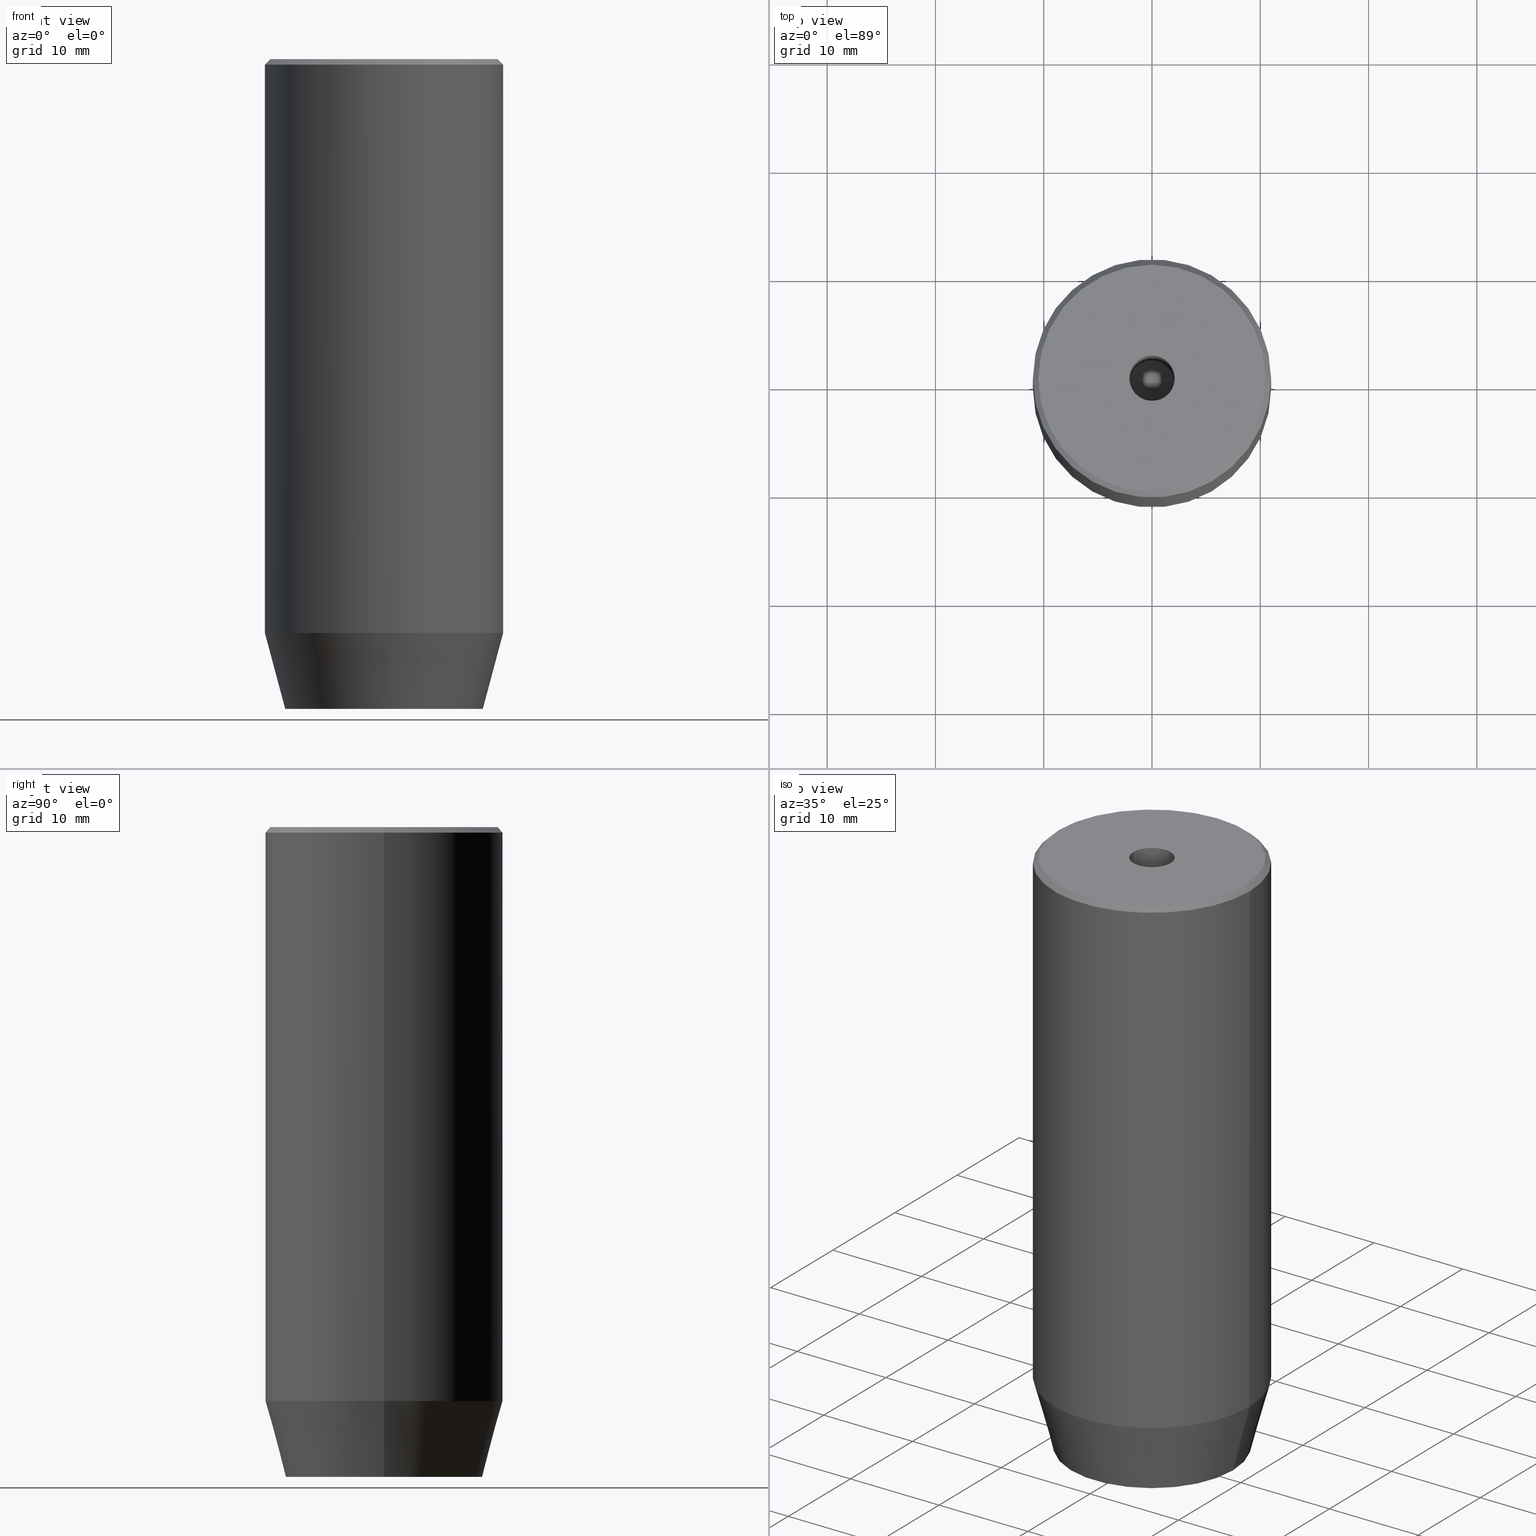
[diagram: canonical four-view strip — front | top / right | iso, engineering-drawing reading convention]
A machine part, canonical four-view strip (front | top / right | iso — engineering-drawing reading convention). The complete STEP part file that produces these views, byte-faithful:
ISO-10303-21;
HEADER;
FILE_DESCRIPTION (( 'STEP AP203' ),
    '1' );
FILE_NAME ('e784.STEP',
    '2024-01-02T19:02:52',
    ( '' ),
    ( '' ),
    'SwSTEP 2.0',
    'SolidWorks 2019',
    '' );
FILE_SCHEMA (( 'CONFIG_CONTROL_DESIGN' ));
ENDSEC;

DATA;
#1 = FACE_OUTER_BOUND ( 'NONE', #431, .T. ) ;
#2 = LINE ( 'NONE', #148, #587 ) ;
#3 = EDGE_CURVE ( 'NONE', #414, #233, #578, .T. ) ;
#4 = CARTESIAN_POINT ( 'NONE',  ( 4.000000000000000000, 0.000000000000000000, -57.20000000000000284 ) ) ;
#5 = VECTOR ( 'NONE', #128, 999.9999999999998863 ) ;
#6 = LOCAL_TIME ( 20, 2, 52.00000000000000000, #485 ) ;
#7 = CARTESIAN_POINT ( 'NONE',  ( 2.000000000000000888, -3.464101615137754386, -57.20000000000000284 ) ) ;
#8 = EDGE_CURVE ( 'NONE', #83, #362, #99, .T. ) ;
#9 = CARTESIAN_POINT ( 'NONE',  ( 0.000000000000000000, 0.000000000000000000, 0.000000000000000000 ) ) ;
#10 = DATE_AND_TIME ( #15, #449 ) ;
#11 = CIRCLE ( 'NONE', #417, 11.00000000000000000 ) ;
#12 = DIRECTION ( 'NONE',  ( -0.000000000000000000, -0.000000000000000000, 1.000000000000000000 ) ) ;
#13 =( GEOMETRIC_REPRESENTATION_CONTEXT ( 3 ) GLOBAL_UNCERTAINTY_ASSIGNED_CONTEXT ( ( #468 ) ) GLOBAL_UNIT_ASSIGNED_CONTEXT ( ( #19, #348, #207 ) ) REPRESENTATION_CONTEXT ( 'NONE', 'WORKASPACE' ) );
#14 = EDGE_LOOP ( 'NONE', ( #487, #179, #497, #159 ) ) ;
#15 = CALENDAR_DATE ( 2024, 2, 1 ) ;
#16 = PLANE ( 'NONE',  #249 ) ;
#17 = ADVANCED_FACE ( 'NONE', ( #319 ), #442, .T. ) ;
#18 = CC_DESIGN_PERSON_AND_ORGANIZATION_ASSIGNMENT ( #393, #250, ( #136 ) ) ;
#19 =( LENGTH_UNIT ( ) NAMED_UNIT ( * ) SI_UNIT ( .MILLI., .METRE. ) );
#20 = APPROVAL_ROLE ( '' ) ;
#21 = CIRCLE ( 'NONE', #505, 2.099999999999998757 ) ;
#22 = LINE ( 'NONE', #353, #212 ) ;
#23 = VERTEX_POINT ( 'NONE', #275 ) ;
#24 = CALENDAR_DATE ( 2024, 2, 1 ) ;
#25 = EDGE_CURVE ( 'NONE', #492, #308, #47, .T. ) ;
#26 = DIRECTION ( 'NONE',  ( -1.000000000000000000, 0.000000000000000000, -0.000000000000000000 ) ) ;
#27 = ORIENTED_EDGE ( 'NONE', *, *, #399, .F. ) ;
#28 = ORIENTED_EDGE ( 'NONE', *, *, #292, .T. ) ;
#29 = DIRECTION ( 'NONE',  ( 0.8660254037844385966, -0.5000000000000001110, 0.000000000000000000 ) ) ;
#30 = APPROVAL ( #256, 'NEUR�EN�' ) ;
#31 = DIRECTION ( 'NONE',  ( 0.000000000000000000, 0.000000000000000000, -1.000000000000000000 ) ) ;
#32 = CARTESIAN_POINT ( 'NONE',  ( 4.000000000000000000, 2.309401076758503368, -60.00000000000000000 ) ) ;
#33 = LINE ( 'NONE', #580, #484 ) ;
#34 = ORIENTED_EDGE ( 'NONE', *, *, #559, .T. ) ;
#35 = ORIENTED_EDGE ( 'NONE', *, *, #49, .T. ) ;
#36 = CIRCLE ( 'NONE', #118, 2.099999999999995648 ) ;
#37 = LOCAL_TIME ( 20, 2, 52.00000000000000000, #172 ) ;
#38 = ORIENTED_EDGE ( 'NONE', *, *, #391, .T. ) ;
#39 = CARTESIAN_POINT ( 'NONE',  ( -2.000000000000000000, 3.464101615137754830, -57.20000000000000284 ) ) ;
#40 = ORIENTED_EDGE ( 'NONE', *, *, #66, .T. ) ;
#41 = CC_DESIGN_PERSON_AND_ORGANIZATION_ASSIGNMENT ( #440, #73, ( #460 ) ) ;
#42 = DIRECTION ( 'NONE',  ( -0.7071067811865451302, 0.000000000000000000, -0.7071067811865500152 ) ) ;
#43 = DIRECTION ( 'NONE',  ( -0.000000000000000000, -0.000000000000000000, 1.000000000000000000 ) ) ;
#44 = ORIENTED_EDGE ( 'NONE', *, *, #3, .F. ) ;
#45 = CARTESIAN_POINT ( 'NONE',  ( -4.000000000000000000, -2.309401076758503368, -57.20000000000000284 ) ) ;
#46 = FACE_OUTER_BOUND ( 'NONE', #113, .T. ) ;
#47 = CIRCLE ( 'NONE', #204, 2.099999999999995648 ) ;
#48 = CARTESIAN_POINT ( 'NONE',  ( 4.000000000000000000, 0.000000000000000000, -60.00000000000000000 ) ) ;
#49 = EDGE_CURVE ( 'NONE', #366, #547, #582, .T. ) ;
#50 = DIRECTION ( 'NONE',  ( -0.000000000000000000, -0.000000000000000000, 1.000000000000000000 ) ) ;
#51 = ORIENTED_EDGE ( 'NONE', *, *, #445, .T. ) ;
#52 = CARTESIAN_POINT ( 'NONE',  ( 4.000000000000000000, 0.000000000000000000, -57.20000000000000284 ) ) ;
#53 = CC_DESIGN_PERSON_AND_ORGANIZATION_ASSIGNMENT ( #402, #307, ( #460 ) ) ;
#54 = DIRECTION ( 'NONE',  ( 0.8660254037844387076, 0.5000000000000001110, 0.000000000000000000 ) ) ;
#55 = CARTESIAN_POINT ( 'NONE',  ( -10.50000000000000888, 0.000000000000000000, 0.000000000000000000 ) ) ;
#56 = ORIENTED_EDGE ( 'NONE', *, *, #133, .F. ) ;
#57 = CIRCLE ( 'NONE', #435, 9.124355652982135467 ) ;
#58 = CC_DESIGN_APPROVAL ( #180, ( #103 ) ) ;
#59 = DIRECTION ( 'NONE',  ( -1.000000000000000000, 0.000000000000000000, 0.000000000000000000 ) ) ;
#60 = CC_DESIGN_PERSON_AND_ORGANIZATION_ASSIGNMENT ( #61, #114, ( #110 ) ) ;
#61 = PERSON_AND_ORGANIZATION ( #193, #119 ) ;
#62 = CALENDAR_DATE ( 2024, 2, 1 ) ;
#63 = AXIS2_PLACEMENT_3D ( 'NONE', #318, #183, #536 ) ;
#64 = VECTOR ( 'NONE', #503, 1000.000000000000114 ) ;
#65 = FACE_OUTER_BOUND ( 'NONE', #372, .T. ) ;
#66 = EDGE_CURVE ( 'NONE', #408, #232, #57, .T. ) ;
#67 = CARTESIAN_POINT ( 'NONE',  ( 0.000000000000000000, 0.000000000000000000, -25.00000000000000000 ) ) ;
#68 = VERTEX_POINT ( 'NONE', #160 ) ;
#69 = DATE_AND_TIME ( #24, #37 ) ;
#70 = ORIENTED_EDGE ( 'NONE', *, *, #252, .F. ) ;
#71 = ORIENTED_EDGE ( 'NONE', *, *, #429, .F. ) ;
#72 = ADVANCED_FACE ( 'NONE', ( #388 ), #126, .F. ) ;
#73 = PERSON_AND_ORGANIZATION_ROLE ( 'design_supplier' ) ;
#74 = DIRECTION ( 'NONE',  ( 1.000000000000000000, 0.000000000000000000, 0.000000000000000000 ) ) ;
#75 = CIRCLE ( 'NONE', #277, 10.50000000000000888 ) ;
#76 = ORIENTED_EDGE ( 'NONE', *, *, #246, .T. ) ;
#77 = ORIENTED_EDGE ( 'NONE', *, *, #466, .F. ) ;
#78 = DATE_TIME_ROLE ( 'creation_date' ) ;
#79 = DIRECTION ( 'NONE',  ( -0.000000000000000000, -0.000000000000000000, -1.000000000000000000 ) ) ;
#80 = CARTESIAN_POINT ( 'NONE',  ( 0.000000000000000000, 0.000000000000000000, -53.00000000000000000 ) ) ;
#81 = CARTESIAN_POINT ( 'NONE',  ( 4.000000000000000000, -2.309401076758502480, -57.20000000000000284 ) ) ;
#82 = EDGE_LOOP ( 'NONE', ( #169, #175, #556, #306 ) ) ;
#83 = VERTEX_POINT ( 'NONE', #258 ) ;
#84 = CARTESIAN_POINT ( 'NONE',  ( 0.000000000000000000, 0.000000000000000000, -57.20000000000000284 ) ) ;
#85 = CARTESIAN_POINT ( 'NONE',  ( -4.000000000000000000, 0.000000000000000000, -57.20000000000000284 ) ) ;
#86 = ORIENTED_EDGE ( 'NONE', *, *, #405, .T. ) ;
#87 = AXIS2_PLACEMENT_3D ( 'NONE', #215, #365, #74 ) ;
#88 = EDGE_LOOP ( 'NONE', ( #374, #284, #534, #51 ) ) ;
#89 = ADVANCED_FACE ( 'NONE', ( #331 ), #106, .T. ) ;
#90 = CARTESIAN_POINT ( 'NONE',  ( -9.124355652982135467, 1.232261386766375704E-15, -60.00000000000000000 ) ) ;
#91 = VERTEX_POINT ( 'NONE', #55 ) ;
#92 = DIRECTION ( 'NONE',  ( 0.000000000000000000, 1.000000000000000000, 0.000000000000000000 ) ) ;
#93 = DIRECTION ( 'NONE',  ( -0.000000000000000000, -0.000000000000000000, 1.000000000000000000 ) ) ;
#94 = CARTESIAN_POINT ( 'NONE',  ( 0.000000000000000000, 0.000000000000000000, -0.4999999999999935052 ) ) ;
#95 = EDGE_CURVE ( 'NONE', #68, #216, #501, .T. ) ;
#96 = DIRECTION ( 'NONE',  ( 1.000000000000000000, 0.000000000000000000, 0.000000000000000000 ) ) ;
#97 = LINE ( 'NONE', #291, #424 ) ;
#98 = DIRECTION ( 'NONE',  ( 1.000000000000000000, 0.000000000000000000, 0.000000000000000000 ) ) ;
#99 = CIRCLE ( 'NONE', #493, 11.00000000000000000 ) ;
#100 = EDGE_LOOP ( 'NONE', ( #539, #464, #473 ) ) ;
#101 = VECTOR ( 'NONE', #328, 1000.000000000000000 ) ;
#102 = DIRECTION ( 'NONE',  ( -0.000000000000000000, -0.000000000000000000, 1.000000000000000000 ) ) ;
#103 = SECURITY_CLASSIFICATION ( '', '', #398 ) ;
#104 = LINE ( 'NONE', #383, #478 ) ;
#105 = DIRECTION ( 'NONE',  ( 0.8660254037844384856, 0.5000000000000002220, 0.000000000000000000 ) ) ;
#106 = CYLINDRICAL_SURFACE ( 'NONE', #513, 11.00000000000000000 ) ;
#107 = APPLICATION_PROTOCOL_DEFINITION ( 'international standard', 'config_control_design', 1994, #217 ) ;
#108 = DIRECTION ( 'NONE',  ( 0.7071067811865451302, 8.659560562354904508E-17, -0.7071067811865500152 ) ) ;
#109 = VECTOR ( 'NONE', #278, 1000.000000000000000 ) ;
#110 = PRODUCT ( 'e784', 'e784', '', ( #346 ) ) ;
#111 = CARTESIAN_POINT ( 'NONE',  ( -2.099999999999998757, 2.571758278209440478E-16, -1.990051048614449116E-16 ) ) ;
#112 = CARTESIAN_POINT ( 'NONE',  ( 2.000000000000000888, -3.464101615137754386, -57.20000000000000284 ) ) ;
#113 = EDGE_LOOP ( 'NONE', ( #439, #452, #144, #260 ) ) ;
#114 = PERSON_AND_ORGANIZATION_ROLE ( 'design_owner' ) ;
#115 = DIRECTION ( 'NONE',  ( -0.000000000000000000, -0.000000000000000000, 1.000000000000000000 ) ) ;
#116 = ORIENTED_EDGE ( 'NONE', *, *, #419, .F. ) ;
#117 = AXIS2_PLACEMENT_3D ( 'NONE', #321, #273, #122 ) ;
#118 = AXIS2_PLACEMENT_3D ( 'NONE', #67, #304, #259 ) ;
#119 = ORGANIZATION ( 'NEUR�EN�', 'NEUR�EN�', '' ) ;
#120 = SHAPE_DEFINITION_REPRESENTATION ( #197, #320 ) ;
#121 = EDGE_CURVE ( 'NONE', #362, #83, #11, .T. ) ;
#122 = DIRECTION ( 'NONE',  ( 1.000000000000000000, 0.000000000000000000, 0.000000000000000000 ) ) ;
#123 = DIRECTION ( 'NONE',  ( 0.000000000000000000, 0.000000000000000000, -1.000000000000000000 ) ) ;
#124 = ADVANCED_FACE ( 'NONE', ( #267 ), #271, .F. ) ;
#125 = PERSON_AND_ORGANIZATION_ROLE ( 'classification_officer' ) ;
#126 = CONICAL_SURFACE ( 'NONE', #225, 2.099999999999995648, 1.029744258676651647 ) ;
#127 = AXIS2_PLACEMENT_3D ( 'NONE', #426, #516, #59 ) ;
#128 = DIRECTION ( 'NONE',  ( 0.8660254037844387076, 0.5000000000000001110, 0.000000000000000000 ) ) ;
#129 = CC_DESIGN_APPROVAL ( #30, ( #136 ) ) ;
#130 = VERTEX_POINT ( 'NONE', #541 ) ;
#131 = CARTESIAN_POINT ( 'NONE',  ( 11.00000000000000000, 0.000000000000000000, -53.00000000000000000 ) ) ;
#132 = DIRECTION ( 'NONE',  ( 1.000000000000000000, 0.000000000000000000, 0.000000000000000000 ) ) ;
#133 = EDGE_CURVE ( 'NONE', #502, #130, #323, .T. ) ;
#134 = CARTESIAN_POINT ( 'NONE',  ( 0.000000000000000000, 0.000000000000000000, 0.000000000000000000 ) ) ;
#135 = CARTESIAN_POINT ( 'NONE',  ( -11.00000000000000000, 1.347111479062088405E-15, -0.4999999999999935052 ) ) ;
#136 = PRODUCT_DEFINITION ( 'NEZN�M�', '', #460, #157 ) ;
#137 = ORIENTED_EDGE ( 'NONE', *, *, #429, .T. ) ;
#138 = DIRECTION ( 'NONE',  ( -1.000000000000000000, 0.000000000000000000, 0.000000000000000000 ) ) ;
#139 = ORIENTED_EDGE ( 'NONE', *, *, #222, .F. ) ;
#140 = VECTOR ( 'NONE', #528, 1000.000000000000000 ) ;
#141 = ORIENTED_EDGE ( 'NONE', *, *, #145, .F. ) ;
#142 = LINE ( 'NONE', #198, #506 ) ;
#143 = ORIENTED_EDGE ( 'NONE', *, *, #133, .T. ) ;
#144 = ORIENTED_EDGE ( 'NONE', *, *, #399, .T. ) ;
#145 = EDGE_CURVE ( 'NONE', #404, #562, #552, .T. ) ;
#146 = DIRECTION ( 'NONE',  ( -0.8660254037844385966, 0.5000000000000001110, 0.000000000000000000 ) ) ;
#147 = ORIENTED_EDGE ( 'NONE', *, *, #164, .F. ) ;
#148 = CARTESIAN_POINT ( 'NONE',  ( 11.00000000000000000, 0.000000000000000000, -53.00000000000000000 ) ) ;
#149 = VECTOR ( 'NONE', #92, 1000.000000000000000 ) ;
#150 = ORIENTED_EDGE ( 'NONE', *, *, #3, .T. ) ;
#151 = DIRECTION ( 'NONE',  ( 1.000000000000000000, 0.000000000000000000, 0.000000000000000000 ) ) ;
#152 = LINE ( 'NONE', #294, #64 ) ;
#153 = DIRECTION ( 'NONE',  ( -0.000000000000000000, -0.000000000000000000, -1.000000000000000000 ) ) ;
#154 = LINE ( 'NONE', #341, #161 ) ;
#155 = EDGE_CURVE ( 'NONE', #216, #502, #174, .T. ) ;
#156 = ORIENTED_EDGE ( 'NONE', *, *, #95, .T. ) ;
#157 = DESIGN_CONTEXT ( 'detailed design', #209, 'design' ) ;
#158 = DIRECTION ( 'NONE',  ( 1.000000000000000000, 0.000000000000000000, 0.000000000000000000 ) ) ;
#159 = ORIENTED_EDGE ( 'NONE', *, *, #298, .F. ) ;
#160 = CARTESIAN_POINT ( 'NONE',  ( 4.336808689942017736E-16, -4.618802153517006737, -57.20000000000000284 ) ) ;
#161 = VECTOR ( 'NONE', #108, 1000.000000000000114 ) ;
#162 = CONICAL_SURFACE ( 'NONE', #303, 2.099999999999995648, 1.029744258676651647 ) ;
#163 = DIRECTION ( 'NONE',  ( 0.000000000000000000, 0.000000000000000000, 1.000000000000000000 ) ) ;
#164 = EDGE_CURVE ( 'NONE', #500, #68, #476, .T. ) ;
#165 = ORIENTED_EDGE ( 'NONE', *, *, #247, .T. ) ;
#166 = DATE_AND_TIME ( #62, #579 ) ;
#167 = ORIENTED_EDGE ( 'NONE', *, *, #377, .T. ) ;
#168 = CARTESIAN_POINT ( 'NONE',  ( -2.099999999999995648, 2.571758278209436040E-16, -25.00000000000000000 ) ) ;
#169 = ORIENTED_EDGE ( 'NONE', *, *, #561, .F. ) ;
#170 = ORIENTED_EDGE ( 'NONE', *, *, #355, .T. ) ;
#171 = ADVANCED_FACE ( 'NONE', ( #477, #65 ), #16, .T. ) ;
#172 = COORDINATED_UNIVERSAL_TIME_OFFSET ( 1, 0, .AHEAD. ) ;
#173 = CARTESIAN_POINT ( 'NONE',  ( -4.000000000000000000, 2.309401076758503368, -57.20000000000000284 ) ) ;
#174 = LINE ( 'NONE', #45, #301 ) ;
#175 = ORIENTED_EDGE ( 'NONE', *, *, #189, .T. ) ;
#176 = AXIS2_PLACEMENT_3D ( 'NONE', #345, #517, #394 ) ;
#177 = DIRECTION ( 'NONE',  ( -0.000000000000000000, -0.000000000000000000, -1.000000000000000000 ) ) ;
#178 = ADVANCED_FACE ( 'NONE', ( #253 ), #202, .F. ) ;
#179 = ORIENTED_EDGE ( 'NONE', *, *, #310, .T. ) ;
#180 = APPROVAL ( #480, 'NEUR�EN�' ) ;
#181 = LINE ( 'NONE', #173, #469 ) ;
#182 = ORIENTED_EDGE ( 'NONE', *, *, #155, .T. ) ;
#183 = DIRECTION ( 'NONE',  ( -0.5000000000000000000, 0.8660254037844387076, 0.000000000000000000 ) ) ;
#184 = CARTESIAN_POINT ( 'NONE',  ( 0.000000000000000000, 4.618802153517006737, -57.20000000000000284 ) ) ;
#185 = DIRECTION ( 'NONE',  ( -0.5000000000000003331, -0.8660254037844385966, 0.000000000000000000 ) ) ;
#186 = ORIENTED_EDGE ( 'NONE', *, *, #347, .T. ) ;
#187 = CARTESIAN_POINT ( 'NONE',  ( -4.000000000000000000, -2.309401076758503368, -57.20000000000000284 ) ) ;
#188 = CARTESIAN_POINT ( 'NONE',  ( -6.432287649943602629E-15, 0.000000000000000000, -26.26180729995787999 ) ) ;
#189 = EDGE_CURVE ( 'NONE', #23, #83, #154, .T. ) ;
#190 = CLOSED_SHELL ( 'NONE', ( #214, #72, #339, #234, #89, #269, #171, #530, #474, #553, #124, #178, #240, #425, #511, #467, #17, #574, #498 ) ) ;
#191 = ORIENTED_EDGE ( 'NONE', *, *, #292, .F. ) ;
#192 = DIRECTION ( 'NONE',  ( -0.000000000000000000, -0.000000000000000000, 1.000000000000000000 ) ) ;
#193 = PERSON ( 'NEUR�EN�', 'NEUR�EN�', 'NEUR�EN�', ('NEUR�EN�'), ('NEUR�EN�'), ('NEUR�EN�') ) ;
#194 = LINE ( 'NONE', #508, #397 ) ;
#195 = CARTESIAN_POINT ( 'NONE',  ( 0.000000000000000000, 0.000000000000000000, -60.00000000000000000 ) ) ;
#196 = DIRECTION ( 'NONE',  ( 0.000000000000000000, -1.000000000000000000, 0.000000000000000000 ) ) ;
#197 = PRODUCT_DEFINITION_SHAPE ( 'NONE', 'NONE',  #136 ) ;
#198 = CARTESIAN_POINT ( 'NONE',  ( 2.000000000000000444, 3.464101615137754386, -57.20000000000000284 ) ) ;
#199 = DIRECTION ( 'NONE',  ( -0.000000000000000000, -0.000000000000000000, 1.000000000000000000 ) ) ;
#200 = CARTESIAN_POINT ( 'NONE',  ( -10.50000000000000888, 0.000000000000000000, 0.000000000000000000 ) ) ;
#201 = APPROVAL_DATE_TIME ( #10, #30 ) ;
#202 = PLANE ( 'NONE',  #176 ) ;
#203 = EDGE_CURVE ( 'NONE', #91, #362, #296, .T. ) ;
#204 = AXIS2_PLACEMENT_3D ( 'NONE', #447, #230, #410 ) ;
#205 = DIRECTION ( 'NONE',  ( 1.000000000000000000, 0.000000000000000000, 0.000000000000000000 ) ) ;
#206 = ORIENTED_EDGE ( 'NONE', *, *, #49, .F. ) ;
#207 =( NAMED_UNIT ( * ) SI_UNIT ( $, .STERADIAN. ) SOLID_ANGLE_UNIT ( ) );
#208 = CARTESIAN_POINT ( 'NONE',  ( 0.000000000000000000, 0.000000000000000000, 0.000000000000000000 ) ) ;
#209 = APPLICATION_CONTEXT ( 'configuration controlled 3d designs of mechanical parts and assemblies' ) ;
#210 = DIRECTION ( 'NONE',  ( 1.000000000000000000, 0.000000000000000000, 0.000000000000000000 ) ) ;
#211 = VERTEX_POINT ( 'NONE', #32 ) ;
#212 = VECTOR ( 'NONE', #79, 1000.000000000000000 ) ;
#213 = DATE_AND_TIME ( #522, #6 ) ;
#214 = ADVANCED_FACE ( 'NONE', ( #412 ), #226, .F. ) ;
#215 = CARTESIAN_POINT ( 'NONE',  ( 0.000000000000000000, 0.000000000000000000, -53.00000000000000000 ) ) ;
#216 = VERTEX_POINT ( 'NONE', #187 ) ;
#217 = APPLICATION_CONTEXT ( 'configuration controlled 3d designs of mechanical parts and assemblies' ) ;
#218 = CARTESIAN_POINT ( 'NONE',  ( -11.00000000000000000, 1.347111479062088405E-15, 0.000000000000000000 ) ) ;
#219 = ORIENTED_EDGE ( 'NONE', *, *, #305, .F. ) ;
#220 = DIRECTION ( 'NONE',  ( 1.000000000000000000, 0.000000000000000000, 0.000000000000000000 ) ) ;
#221 = ORIENTED_EDGE ( 'NONE', *, *, #310, .F. ) ;
#222 = EDGE_CURVE ( 'NONE', #327, #502, #544, .T. ) ;
#223 = DIRECTION ( 'NONE',  ( -1.000000000000000000, 0.000000000000000000, -0.000000000000000000 ) ) ;
#224 = CARTESIAN_POINT ( 'NONE',  ( -2.000000000000000888, -3.464101615137754386, -60.00000000000000000 ) ) ;
#225 = AXIS2_PLACEMENT_3D ( 'NONE', #255, #563, #519 ) ;
#226 = CYLINDRICAL_SURFACE ( 'NONE', #520, 2.099999999999996980 ) ;
#227 = DIRECTION ( 'NONE',  ( -0.000000000000000000, -0.000000000000000000, 1.000000000000000000 ) ) ;
#228 = EDGE_LOOP ( 'NONE', ( #570, #537, #494, #359 ) ) ;
#229 = EDGE_LOOP ( 'NONE', ( #170, #546, #336, #35 ) ) ;
#230 = DIRECTION ( 'NONE',  ( -0.000000000000000000, -0.000000000000000000, 1.000000000000000000 ) ) ;
#231 = CARTESIAN_POINT ( 'NONE',  ( 0.000000000000000000, 9.124355652982135467, -60.00000000000000000 ) ) ;
#232 = VERTEX_POINT ( 'NONE', #262 ) ;
#233 = VERTEX_POINT ( 'NONE', #131 ) ;
#234 = ADVANCED_FACE ( 'NONE', ( #357 ), #380, .T. ) ;
#235 = CARTESIAN_POINT ( 'NONE',  ( 0.000000000000000000, 0.000000000000000000, -60.00000000000000000 ) ) ;
#236 = ORIENTED_EDGE ( 'NONE', *, *, #405, .F. ) ;
#237 = DIRECTION ( 'NONE',  ( -0.000000000000000000, -0.000000000000000000, -1.000000000000000000 ) ) ;
#238 = VECTOR ( 'NONE', #29, 1000.000000000000000 ) ;
#239 = DIRECTION ( 'NONE',  ( 0.5000000000000003331, -0.8660254037844385966, 0.000000000000000000 ) ) ;
#240 = ADVANCED_FACE ( 'NONE', ( #316 ), #569, .F. ) ;
#241 = CONICAL_SURFACE ( 'NONE', #483, 10.50000000000000888, 0.7853981633974447263 ) ;
#242 = DIRECTION ( 'NONE',  ( -0.000000000000000000, 0.000000000000000000, -1.000000000000000000 ) ) ;
#243 = ORIENTED_EDGE ( 'NONE', *, *, #247, .F. ) ;
#244 = PLANE ( 'NONE',  #554 ) ;
#245 = ORIENTED_EDGE ( 'NONE', *, *, #419, .T. ) ;
#246 = EDGE_CURVE ( 'NONE', #500, #457, #486, .T. ) ;
#247 = EDGE_CURVE ( 'NONE', #562, #404, #21, .T. ) ;
#248 = DIRECTION ( 'NONE',  ( 0.5000000000000001110, 0.8660254037844385966, -0.000000000000000000 ) ) ;
#249 = AXIS2_PLACEMENT_3D ( 'NONE', #208, #385, #251 ) ;
#250 = PERSON_AND_ORGANIZATION_ROLE ( 'creator' ) ;
#251 = DIRECTION ( 'NONE',  ( 1.000000000000000000, 0.000000000000000000, 0.000000000000000000 ) ) ;
#252 = EDGE_CURVE ( 'NONE', #280, #366, #450, .T. ) ;
#253 = FACE_OUTER_BOUND ( 'NONE', #315, .T. ) ;
#254 = CYLINDRICAL_SURFACE ( 'NONE', #459, 11.00000000000000000 ) ;
#255 = CARTESIAN_POINT ( 'NONE',  ( 0.000000000000000000, 0.000000000000000000, -25.00000000000000000 ) ) ;
#256 = APPROVAL_STATUS ( 'not_yet_approved' ) ;
#257 = DIRECTION ( 'NONE',  ( -0.8660254037844384856, -0.5000000000000002220, 0.000000000000000000 ) ) ;
#258 = CARTESIAN_POINT ( 'NONE',  ( 11.00000000000000000, 0.000000000000000000, -0.4999999999999935052 ) ) ;
#259 = DIRECTION ( 'NONE',  ( 1.000000000000000000, 0.000000000000000000, 0.000000000000000000 ) ) ;
#260 = ORIENTED_EDGE ( 'NONE', *, *, #145, .T. ) ;
#261 = DATE_TIME_ROLE ( 'classification_date' ) ;
#262 = CARTESIAN_POINT ( 'NONE',  ( 9.124355652982135467, 0.000000000000000000, -60.00000000000000000 ) ) ;
#263 = ORIENTED_EDGE ( 'NONE', *, *, #332, .T. ) ;
#264 = VECTOR ( 'NONE', #524, 1000.000000000000114 ) ;
#265 = DIRECTION ( 'NONE',  ( 0.8660254037844384856, -0.5000000000000002220, 0.000000000000000000 ) ) ;
#266 = EDGE_LOOP ( 'NONE', ( #137, #206, #70, #263 ) ) ;
#267 = FACE_OUTER_BOUND ( 'NONE', #266, .T. ) ;
#268 = APPROVAL_ROLE ( '' ) ;
#269 = ADVANCED_FACE ( 'NONE', ( #538, #413 ), #407, .T. ) ;
#270 = CARTESIAN_POINT ( 'NONE',  ( 2.000000000000000444, 3.464101615137754386, -60.00000000000000000 ) ) ;
#271 = PLANE ( 'NONE',  #63 ) ;
#272 = DIRECTION ( 'NONE',  ( -0.000000000000000000, -0.000000000000000000, 1.000000000000000000 ) ) ;
#273 = DIRECTION ( 'NONE',  ( -0.000000000000000000, -0.000000000000000000, 1.000000000000000000 ) ) ;
#274 = EDGE_LOOP ( 'NONE', ( #77, #282, #34 ) ) ;
#275 = CARTESIAN_POINT ( 'NONE',  ( 10.50000000000000888, 1.316495309083405209E-15, 0.000000000000000000 ) ) ;
#276 = AXIS2_PLACEMENT_3D ( 'NONE', #361, #185, #265 ) ;
#277 = AXIS2_PLACEMENT_3D ( 'NONE', #428, #558, #158 ) ;
#278 = DIRECTION ( 'NONE',  ( 0.000000000000000000, 1.000000000000000000, 0.000000000000000000 ) ) ;
#279 = LOCAL_TIME ( 20, 2, 52.00000000000000000, #433 ) ;
#280 = VERTEX_POINT ( 'NONE', #443 ) ;
#281 = EDGE_LOOP ( 'NONE', ( #531, #444, #165, #27 ) ) ;
#282 = ORIENTED_EDGE ( 'NONE', *, *, #409, .T. ) ;
#283 = DIRECTION ( 'NONE',  ( 0.8571673007021108903, 0.000000000000000000, 0.5150380749100565980 ) ) ;
#284 = ORIENTED_EDGE ( 'NONE', *, *, #155, .F. ) ;
#285 = FACE_OUTER_BOUND ( 'NONE', #584, .T. ) ;
#286 = MANIFOLD_SOLID_BREP ( 'Vrt�k z�vitn�ku pro M5 z�vit1', #190 ) ;
#287 = PLANE ( 'NONE',  #543 ) ;
#288 = AXIS2_PLACEMENT_3D ( 'NONE', #235, #338, #555 ) ;
#289 = DIRECTION ( 'NONE',  ( -0.8660254037844384856, 0.5000000000000002220, 0.000000000000000000 ) ) ;
#290 = AXIS2_PLACEMENT_3D ( 'NONE', #566, #163, #475 ) ;
#291 = CARTESIAN_POINT ( 'NONE',  ( -2.000000000000000000, 3.464101615137754830, -60.00000000000000000 ) ) ;
#292 = EDGE_CURVE ( 'NONE', #408, #414, #33, .T. ) ;
#293 = ORIENTED_EDGE ( 'NONE', *, *, #66, .F. ) ;
#294 = CARTESIAN_POINT ( 'NONE',  ( -2.099999999999995648, 2.571758278209436040E-16, -25.00000000000000000 ) ) ;
#295 = COORDINATED_UNIVERSAL_TIME_OFFSET ( 1, 0, .AHEAD. ) ;
#296 = LINE ( 'NONE', #200, #358 ) ;
#297 = AXIS2_PLACEMENT_3D ( 'NONE', #80, #272, #132 ) ;
#298 = EDGE_CURVE ( 'NONE', #233, #83, #309, .T. ) ;
#299 = CARTESIAN_POINT ( 'NONE',  ( 0.000000000000000000, 0.000000000000000000, -25.00000000000000000 ) ) ;
#300 = PERSON_AND_ORGANIZATION ( #193, #119 ) ;
#301 = VECTOR ( 'NONE', #237, 1000.000000000000000 ) ;
#302 = CONICAL_SURFACE ( 'NONE', #127, 10.50000000000000888, 0.7853981633974447263 ) ;
#303 = AXIS2_PLACEMENT_3D ( 'NONE', #299, #12, #210 ) ;
#304 = DIRECTION ( 'NONE',  ( -0.000000000000000000, -0.000000000000000000, 1.000000000000000000 ) ) ;
#305 = EDGE_CURVE ( 'NONE', #233, #414, #349, .T. ) ;
#306 = ORIENTED_EDGE ( 'NONE', *, *, #203, .F. ) ;
#307 = PERSON_AND_ORGANIZATION_ROLE ( 'creator' ) ;
#308 = VERTEX_POINT ( 'NONE', #168 ) ;
#309 = LINE ( 'NONE', #482, #368 ) ;
#310 = EDGE_CURVE ( 'NONE', #414, #362, #532, .T. ) ;
#311 = DIRECTION ( 'NONE',  ( 1.000000000000000000, 0.000000000000000000, 0.000000000000000000 ) ) ;
#312 = VECTOR ( 'NONE', #196, 1000.000000000000000 ) ;
#313 = APPROVAL_DATE_TIME ( #356, #512 ) ;
#314 = DIRECTION ( 'NONE',  ( -0.2588190451025213501, 3.169619151431772337E-17, 0.9659258262890680902 ) ) ;
#315 = EDGE_LOOP ( 'NONE', ( #143, #533, #395, #182 ) ) ;
#316 = FACE_OUTER_BOUND ( 'NONE', #88, .T. ) ;
#317 = ORIENTED_EDGE ( 'NONE', *, *, #432, .T. ) ;
#318 = CARTESIAN_POINT ( 'NONE',  ( -2.000000000000000000, 3.464101615137754830, -57.20000000000000284 ) ) ;
#319 = FACE_OUTER_BOUND ( 'NONE', #540, .T. ) ;
#320 = ADVANCED_BREP_SHAPE_REPRESENTATION ( 'e784', ( #286, #290 ), #13 ) ;
#321 = CARTESIAN_POINT ( 'NONE',  ( 0.000000000000000000, 0.000000000000000000, -53.00000000000000000 ) ) ;
#322 = ORIENTED_EDGE ( 'NONE', *, *, #515, .F. ) ;
#323 = LINE ( 'NONE', #367, #149 ) ;
#324 = VECTOR ( 'NONE', #403, 1000.000000000000000 ) ;
#325 = AXIS2_PLACEMENT_3D ( 'NONE', #499, #43, #415 ) ;
#326 = CARTESIAN_POINT ( 'NONE',  ( 2.000000000000000888, -3.464101615137754386, -60.00000000000000000 ) ) ;
#327 = VERTEX_POINT ( 'NONE', #583 ) ;
#328 = DIRECTION ( 'NONE',  ( 0.000000000000000000, -1.000000000000000000, 0.000000000000000000 ) ) ;
#329 = DIRECTION ( 'NONE',  ( -0.000000000000000000, -0.000000000000000000, 1.000000000000000000 ) ) ;
#330 = FACE_OUTER_BOUND ( 'NONE', #436, .T. ) ;
#331 = FACE_OUTER_BOUND ( 'NONE', #14, .T. ) ;
#332 = EDGE_CURVE ( 'NONE', #280, #130, #181, .T. ) ;
#333 = AXIS2_PLACEMENT_3D ( 'NONE', #84, #31, #223 ) ;
#334 = DIRECTION ( 'NONE',  ( 0.8660254037844385966, -0.5000000000000001110, 0.000000000000000000 ) ) ;
#335 = APPROVAL_PERSON_ORGANIZATION ( #350, #180, #20 ) ;
#336 = ORIENTED_EDGE ( 'NONE', *, *, #432, .F. ) ;
#337 = CARTESIAN_POINT ( 'NONE',  ( -11.00000000000000000, 1.347111479062088405E-15, -53.00000000000000000 ) ) ;
#338 = DIRECTION ( 'NONE',  ( -0.000000000000000000, -0.000000000000000000, 1.000000000000000000 ) ) ;
#339 = ADVANCED_FACE ( 'NONE', ( #363 ), #241, .T. ) ;
#340 = FACE_OUTER_BOUND ( 'NONE', #228, .T. ) ;
#341 = CARTESIAN_POINT ( 'NONE',  ( 10.50000000000000888, 1.285879139104722014E-15, 0.000000000000000000 ) ) ;
#342 = ORIENTED_EDGE ( 'NONE', *, *, #445, .F. ) ;
#343 = CIRCLE ( 'NONE', #288, 9.124355652982135467 ) ;
#344 = COORDINATED_UNIVERSAL_TIME_OFFSET ( 1, 0, .AHEAD. ) ;
#345 = CARTESIAN_POINT ( 'NONE',  ( -4.000000000000000000, 0.000000000000000000, -57.20000000000000284 ) ) ;
#346 = MECHANICAL_CONTEXT ( 'NONE', #217, 'mechanical' ) ;
#347 = EDGE_CURVE ( 'NONE', #581, #211, #22, .T. ) ;
#348 =( NAMED_UNIT ( * ) PLANE_ANGLE_UNIT ( ) SI_UNIT ( $, .RADIAN. ) );
#349 = CIRCLE ( 'NONE', #87, 11.00000000000000000 ) ;
#350 = PERSON_AND_ORGANIZATION ( #193, #119 ) ;
#351 = ORIENTED_EDGE ( 'NONE', *, *, #565, .T. ) ;
#352 = PERSON_AND_ORGANIZATION ( #193, #119 ) ;
#353 = CARTESIAN_POINT ( 'NONE',  ( 4.000000000000000000, 2.309401076758503368, -57.20000000000000284 ) ) ;
#354 = ORIENTED_EDGE ( 'NONE', *, *, #355, .F. ) ;
#355 = EDGE_CURVE ( 'NONE', #547, #211, #400, .T. ) ;
#356 = DATE_AND_TIME ( #437, #279 ) ;
#357 = FACE_OUTER_BOUND ( 'NONE', #379, .T. ) ;
#358 = VECTOR ( 'NONE', #42, 1000.000000000000114 ) ;
#359 = ORIENTED_EDGE ( 'NONE', *, *, #8, .F. ) ;
#360 = CC_DESIGN_APPROVAL ( #512, ( #460 ) ) ;
#361 = CARTESIAN_POINT ( 'NONE',  ( -2.000000000000000888, -3.464101615137754386, -57.20000000000000284 ) ) ;
#362 = VERTEX_POINT ( 'NONE', #135 ) ;
#363 = FACE_OUTER_BOUND ( 'NONE', #82, .T. ) ;
#364 = DIRECTION ( 'NONE',  ( -0.000000000000000000, -0.000000000000000000, -1.000000000000000000 ) ) ;
#365 = DIRECTION ( 'NONE',  ( -0.000000000000000000, -0.000000000000000000, 1.000000000000000000 ) ) ;
#366 = VERTEX_POINT ( 'NONE', #491 ) ;
#367 = CARTESIAN_POINT ( 'NONE',  ( -4.000000000000000000, 0.000000000000000000, -60.00000000000000000 ) ) ;
#368 = VECTOR ( 'NONE', #496, 1000.000000000000000 ) ;
#369 = AXIS2_PLACEMENT_3D ( 'NONE', #384, #115, #205 ) ;
#370 = LINE ( 'NONE', #455, #495 ) ;
#371 = APPROVAL_PERSON_ORGANIZATION ( #352, #512, #268 ) ;
#372 = EDGE_LOOP ( 'NONE', ( #351, #523 ) ) ;
#373 = CARTESIAN_POINT ( 'NONE',  ( 0.000000000000000000, 0.000000000000000000, -1.990051048614449116E-16 ) ) ;
#374 = ORIENTED_EDGE ( 'NONE', *, *, #222, .T. ) ;
#375 = CARTESIAN_POINT ( 'NONE',  ( -4.000000000000000000, -2.309401076758503368, -60.00000000000000000 ) ) ;
#376 = ORIENTED_EDGE ( 'NONE', *, *, #246, .F. ) ;
#377 = EDGE_CURVE ( 'NONE', #457, #327, #441, .T. ) ;
#378 = CARTESIAN_POINT ( 'NONE',  ( 2.099999999999995648, 0.000000000000000000, -25.00000000000000000 ) ) ;
#379 = EDGE_LOOP ( 'NONE', ( #245, #28, #219, #236 ) ) ;
#380 = CONICAL_SURFACE ( 'NONE', #117, 11.00000000000000000, 0.2617993877991500740 ) ;
#381 = DIRECTION ( 'NONE',  ( 1.000000000000000000, 0.000000000000000000, 0.000000000000000000 ) ) ;
#382 = AXIS2_PLACEMENT_3D ( 'NONE', #7, #239, #105 ) ;
#383 = CARTESIAN_POINT ( 'NONE',  ( 2.099999999999995648, 0.000000000000000000, -25.00000000000000000 ) ) ;
#384 = CARTESIAN_POINT ( 'NONE',  ( 0.000000000000000000, 0.000000000000000000, 0.000000000000000000 ) ) ;
#385 = DIRECTION ( 'NONE',  ( 0.000000000000000000, -0.000000000000000000, 1.000000000000000000 ) ) ;
#386 = ORIENTED_EDGE ( 'NONE', *, *, #164, .T. ) ;
#387 = VECTOR ( 'NONE', #364, 1000.000000000000000 ) ;
#388 = FACE_OUTER_BOUND ( 'NONE', #274, .T. ) ;
#389 = CARTESIAN_POINT ( 'NONE',  ( 4.000000000000000000, 2.309401076758503368, -57.20000000000000284 ) ) ;
#390 = ORIENTED_EDGE ( 'NONE', *, *, #8, .T. ) ;
#391 = EDGE_CURVE ( 'NONE', #216, #280, #406, .T. ) ;
#392 = CC_DESIGN_DATE_AND_TIME_ASSIGNMENT ( #69, #261, ( #103 ) ) ;
#393 = PERSON_AND_ORGANIZATION ( #193, #119 ) ;
#394 = DIRECTION ( 'NONE',  ( 0.000000000000000000, 0.000000000000000000, 1.000000000000000000 ) ) ;
#395 = ORIENTED_EDGE ( 'NONE', *, *, #391, .F. ) ;
#396 = VECTOR ( 'NONE', #257, 1000.000000000000114 ) ;
#397 = VECTOR ( 'NONE', #153, 1000.000000000000000 ) ;
#398 = SECURITY_CLASSIFICATION_LEVEL ( 'unclassified' ) ;
#399 = EDGE_CURVE ( 'NONE', #492, #404, #577, .T. ) ;
#400 = LINE ( 'NONE', #270, #238 ) ;
#401 = ORIENTED_EDGE ( 'NONE', *, *, #515, .T. ) ;
#402 = PERSON_AND_ORGANIZATION ( #193, #119 ) ;
#403 = DIRECTION ( 'NONE',  ( -0.000000000000000000, -0.000000000000000000, 1.000000000000000000 ) ) ;
#404 = VERTEX_POINT ( 'NONE', #423 ) ;
#405 = EDGE_CURVE ( 'NONE', #232, #233, #2, .T. ) ;
#406 = LINE ( 'NONE', #85, #109 ) ;
#407 = PLANE ( 'NONE',  #567 ) ;
#408 = VERTEX_POINT ( 'NONE', #90 ) ;
#409 = EDGE_CURVE ( 'NONE', #479, #308, #152, .T. ) ;
#410 = DIRECTION ( 'NONE',  ( 1.000000000000000000, 0.000000000000000000, 0.000000000000000000 ) ) ;
#411 = CC_DESIGN_PERSON_AND_ORGANIZATION_ASSIGNMENT ( #527, #125, ( #103 ) ) ;
#412 = FACE_OUTER_BOUND ( 'NONE', #281, .T. ) ;
#413 = FACE_OUTER_BOUND ( 'NONE', #526, .T. ) ;
#414 = VERTEX_POINT ( 'NONE', #337 ) ;
#415 = DIRECTION ( 'NONE',  ( 1.000000000000000000, 0.000000000000000000, 0.000000000000000000 ) ) ;
#416 = ORIENTED_EDGE ( 'NONE', *, *, #454, .F. ) ;
#417 = AXIS2_PLACEMENT_3D ( 'NONE', #94, #456, #462 ) ;
#418 = CARTESIAN_POINT ( 'NONE',  ( 4.000000000000000000, -2.309401076758502480, -60.00000000000000000 ) ) ;
#419 = EDGE_CURVE ( 'NONE', #232, #408, #343, .T. ) ;
#420 = LINE ( 'NONE', #4, #312 ) ;
#421 = CC_DESIGN_DATE_AND_TIME_ASSIGNMENT ( #166, #78, ( #136 ) ) ;
#422 = CARTESIAN_POINT ( 'NONE',  ( 4.000000000000000000, -2.309401076758502480, -57.20000000000000284 ) ) ;
#423 = CARTESIAN_POINT ( 'NONE',  ( 2.099999999999998757, 0.000000000000000000, -1.990051048614449116E-16 ) ) ;
#424 = VECTOR ( 'NONE', #54, 999.9999999999998863 ) ;
#425 = ADVANCED_FACE ( 'NONE', ( #285 ), #510, .F. ) ;
#426 = CARTESIAN_POINT ( 'NONE',  ( 0.000000000000000000, 0.000000000000000000, 0.000000000000000000 ) ) ;
#427 = APPLICATION_PROTOCOL_DEFINITION ( 'international standard', 'config_control_design', 1994, #209 ) ;
#428 = CARTESIAN_POINT ( 'NONE',  ( 0.000000000000000000, 0.000000000000000000, 0.000000000000000000 ) ) ;
#429 = EDGE_CURVE ( 'NONE', #130, #547, #97, .T. ) ;
#430 = APPROVAL_ROLE ( '' ) ;
#431 = EDGE_LOOP ( 'NONE', ( #191, #40, #86, #44 ) ) ;
#432 = EDGE_CURVE ( 'NONE', #366, #581, #142, .T. ) ;
#433 = COORDINATED_UNIVERSAL_TIME_OFFSET ( 1, 0, .AHEAD. ) ;
#434 = DIRECTION ( 'NONE',  ( -0.8660254037844384856, 0.5000000000000002220, 0.000000000000000000 ) ) ;
#435 = AXIS2_PLACEMENT_3D ( 'NONE', #195, #102, #151 ) ;
#436 = EDGE_LOOP ( 'NONE', ( #576, #376, #322, #186 ) ) ;
#437 = CALENDAR_DATE ( 2024, 2, 1 ) ;
#438 = CARTESIAN_POINT ( 'NONE',  ( 0.000000000000000000, 0.000000000000000000, -1.990051048614449116E-16 ) ) ;
#439 = ORIENTED_EDGE ( 'NONE', *, *, #488, .F. ) ;
#440 = PERSON_AND_ORGANIZATION ( #193, #119 ) ;
#441 = LINE ( 'NONE', #326, #264 ) ;
#442 = PLANE ( 'NONE',  #333 ) ;
#443 = CARTESIAN_POINT ( 'NONE',  ( -4.000000000000000000, 2.309401076758503368, -57.20000000000000284 ) ) ;
#444 = ORIENTED_EDGE ( 'NONE', *, *, #488, .T. ) ;
#445 = EDGE_CURVE ( 'NONE', #68, #327, #194, .T. ) ;
#446 = AXIS2_PLACEMENT_3D ( 'NONE', #373, #575, #453 ) ;
#447 = CARTESIAN_POINT ( 'NONE',  ( 0.000000000000000000, 0.000000000000000000, -25.00000000000000000 ) ) ;
#448 = CIRCLE ( 'NONE', #369, 10.50000000000000888 ) ;
#449 = LOCAL_TIME ( 20, 2, 52.00000000000000000, #295 ) ;
#450 = LINE ( 'NONE', #39, #5 ) ;
#451 = CARTESIAN_POINT ( 'NONE',  ( 2.000000000000000444, 3.464101615137754386, -57.20000000000000284 ) ) ;
#452 = ORIENTED_EDGE ( 'NONE', *, *, #25, .F. ) ;
#453 = DIRECTION ( 'NONE',  ( 1.000000000000000000, 0.000000000000000000, 0.000000000000000000 ) ) ;
#454 = EDGE_CURVE ( 'NONE', #211, #457, #465, .T. ) ;
#455 = CARTESIAN_POINT ( 'NONE',  ( -2.099999999999996980, 2.571758278209438013E-16, 0.000000000000000000 ) ) ;
#456 = DIRECTION ( 'NONE',  ( 0.000000000000000000, 0.000000000000000000, -1.000000000000000000 ) ) ;
#457 = VERTEX_POINT ( 'NONE', #418 ) ;
#458 = VECTOR ( 'NONE', #289, 1000.000000000000114 ) ;
#459 = AXIS2_PLACEMENT_3D ( 'NONE', #9, #199, #564 ) ;
#460 = PRODUCT_DEFINITION_FORMATION_WITH_SPECIFIED_SOURCE ( 'LIBOVOLN�', '', #110, .NOT_KNOWN. ) ;
#461 = DIRECTION ( 'NONE',  ( 1.000000000000000000, 0.000000000000000000, -0.000000000000000000 ) ) ;
#462 = DIRECTION ( 'NONE',  ( 1.000000000000000000, 0.000000000000000000, 0.000000000000000000 ) ) ;
#463 = CYLINDRICAL_SURFACE ( 'NONE', #471, 2.099999999999996980 ) ;
#464 = ORIENTED_EDGE ( 'NONE', *, *, #466, .T. ) ;
#465 = LINE ( 'NONE', #48, #101 ) ;
#466 = EDGE_CURVE ( 'NONE', #479, #492, #104, .T. ) ;
#467 = ADVANCED_FACE ( 'NONE', ( #585 ), #244, .F. ) ;
#468 = UNCERTAINTY_MEASURE_WITH_UNIT (LENGTH_MEASURE( 1.000000000000000082E-05 ), #19, 'distance_accuracy_value', 'NONE');
#469 = VECTOR ( 'NONE', #177, 1000.000000000000000 ) ;
#470 = CARTESIAN_POINT ( 'NONE',  ( 0.000000000000000000, 4.618802153517005848, -60.00000000000000000 ) ) ;
#471 = AXIS2_PLACEMENT_3D ( 'NONE', #551, #192, #381 ) ;
#472 = APPROVAL_PERSON_ORGANIZATION ( #300, #30, #430 ) ;
#473 = ORIENTED_EDGE ( 'NONE', *, *, #25, .T. ) ;
#474 = ADVANCED_FACE ( 'NONE', ( #1 ), #521, .T. ) ;
#475 = DIRECTION ( 'NONE',  ( 1.000000000000000000, 0.000000000000000000, 0.000000000000000000 ) ) ;
#476 = LINE ( 'NONE', #112, #396 ) ;
#477 = FACE_BOUND ( 'NONE', #571, .T. ) ;
#478 = VECTOR ( 'NONE', #283, 1000.000000000000114 ) ;
#479 = VERTEX_POINT ( 'NONE', #188 ) ;
#480 = APPROVAL_STATUS ( 'not_yet_approved' ) ;
#481 = APPROVAL_STATUS ( 'not_yet_approved' ) ;
#482 = CARTESIAN_POINT ( 'NONE',  ( 11.00000000000000000, 0.000000000000000000, 0.000000000000000000 ) ) ;
#483 = AXIS2_PLACEMENT_3D ( 'NONE', #573, #535, #138 ) ;
#484 = VECTOR ( 'NONE', #314, 1000.000000000000000 ) ;
#485 = COORDINATED_UNIVERSAL_TIME_OFFSET ( 1, 0, .AHEAD. ) ;
#486 = LINE ( 'NONE', #81, #140 ) ;
#487 = ORIENTED_EDGE ( 'NONE', *, *, #305, .T. ) ;
#488 = EDGE_CURVE ( 'NONE', #308, #562, #370, .T. ) ;
#489 = DIRECTION ( 'NONE',  ( 0.000000000000000000, 0.000000000000000000, -1.000000000000000000 ) ) ;
#490 = CARTESIAN_POINT ( 'NONE',  ( 0.000000000000000000, 0.000000000000000000, -0.4999999999999935052 ) ) ;
#491 = CARTESIAN_POINT ( 'NONE',  ( 0.000000000000000000, 4.618802153517006737, -57.20000000000000284 ) ) ;
#492 = VERTEX_POINT ( 'NONE', #378 ) ;
#493 = AXIS2_PLACEMENT_3D ( 'NONE', #490, #123, #311 ) ;
#494 = ORIENTED_EDGE ( 'NONE', *, *, #203, .T. ) ;
#495 = VECTOR ( 'NONE', #549, 1000.000000000000000 ) ;
#496 = DIRECTION ( 'NONE',  ( -0.000000000000000000, -0.000000000000000000, 1.000000000000000000 ) ) ;
#497 = ORIENTED_EDGE ( 'NONE', *, *, #121, .T. ) ;
#498 = ADVANCED_FACE ( 'NONE', ( #46 ), #463, .F. ) ;
#499 = CARTESIAN_POINT ( 'NONE',  ( 0.000000000000000000, 0.000000000000000000, -53.00000000000000000 ) ) ;
#500 = VERTEX_POINT ( 'NONE', #422 ) ;
#501 = LINE ( 'NONE', #509, #458 ) ;
#502 = VERTEX_POINT ( 'NONE', #375 ) ;
#503 = DIRECTION ( 'NONE',  ( -0.8571673007021108903, 1.049727191138616847E-16, 0.5150380749100565980 ) ) ;
#504 = CARTESIAN_POINT ( 'NONE',  ( 0.000000000000000000, 0.000000000000000000, 0.000000000000000000 ) ) ;
#505 = AXIS2_PLACEMENT_3D ( 'NONE', #438, #227, #220 ) ;
#506 = VECTOR ( 'NONE', #334, 1000.000000000000000 ) ;
#507 = CC_DESIGN_SECURITY_CLASSIFICATION ( #103, ( #460 ) ) ;
#508 = CARTESIAN_POINT ( 'NONE',  ( 4.336808689942017736E-16, -4.618802153517006737, -57.20000000000000284 ) ) ;
#509 = CARTESIAN_POINT ( 'NONE',  ( -2.000000000000000888, -3.464101615137754386, -57.20000000000000284 ) ) ;
#510 = PLANE ( 'NONE',  #382 ) ;
#511 = ADVANCED_FACE ( 'NONE', ( #330 ), #287, .F. ) ;
#512 = APPROVAL ( #481, 'NEUR�EN�' ) ;
#513 = AXIS2_PLACEMENT_3D ( 'NONE', #504, #50, #98 ) ;
#514 = FACE_OUTER_BOUND ( 'NONE', #100, .T. ) ;
#515 = EDGE_CURVE ( 'NONE', #581, #500, #420, .T. ) ;
#516 = DIRECTION ( 'NONE',  ( 0.000000000000000000, 0.000000000000000000, -1.000000000000000000 ) ) ;
#517 = DIRECTION ( 'NONE',  ( -1.000000000000000000, 0.000000000000000000, 0.000000000000000000 ) ) ;
#518 = FACE_OUTER_BOUND ( 'NONE', #525, .T. ) ;
#519 = DIRECTION ( 'NONE',  ( 1.000000000000000000, 0.000000000000000000, 0.000000000000000000 ) ) ;
#520 = AXIS2_PLACEMENT_3D ( 'NONE', #134, #329, #96 ) ;
#521 = CONICAL_SURFACE ( 'NONE', #325, 11.00000000000000000, 0.2617993877991500740 ) ;
#522 = CALENDAR_DATE ( 2024, 2, 1 ) ;
#523 = ORIENTED_EDGE ( 'NONE', *, *, #561, .T. ) ;
#524 = DIRECTION ( 'NONE',  ( -0.8660254037844384856, -0.5000000000000002220, 0.000000000000000000 ) ) ;
#525 = EDGE_LOOP ( 'NONE', ( #221, #150, #529, #390 ) ) ;
#526 = EDGE_LOOP ( 'NONE', ( #116, #293 ) ) ;
#527 = PERSON_AND_ORGANIZATION ( #193, #119 ) ;
#528 = DIRECTION ( 'NONE',  ( -0.000000000000000000, -0.000000000000000000, -1.000000000000000000 ) ) ;
#529 = ORIENTED_EDGE ( 'NONE', *, *, #298, .T. ) ;
#530 = ADVANCED_FACE ( 'NONE', ( #518 ), #254, .T. ) ;
#531 = ORIENTED_EDGE ( 'NONE', *, *, #559, .F. ) ;
#532 = LINE ( 'NONE', #218, #324 ) ;
#533 = ORIENTED_EDGE ( 'NONE', *, *, #332, .F. ) ;
#534 = ORIENTED_EDGE ( 'NONE', *, *, #95, .F. ) ;
#535 = DIRECTION ( 'NONE',  ( 0.000000000000000000, 0.000000000000000000, -1.000000000000000000 ) ) ;
#536 = DIRECTION ( 'NONE',  ( -0.8660254037844385966, -0.4999999999999999445, 0.000000000000000000 ) ) ;
#537 = ORIENTED_EDGE ( 'NONE', *, *, #565, .F. ) ;
#538 = FACE_BOUND ( 'NONE', #568, .T. ) ;
#539 = ORIENTED_EDGE ( 'NONE', *, *, #409, .F. ) ;
#540 = EDGE_LOOP ( 'NONE', ( #550, #317, #401, #386, #156, #38 ) ) ;
#541 = CARTESIAN_POINT ( 'NONE',  ( -4.000000000000000000, 2.309401076758503368, -60.00000000000000000 ) ) ;
#542 = VECTOR ( 'NONE', #434, 1000.000000000000114 ) ;
#543 = AXIS2_PLACEMENT_3D ( 'NONE', #52, #461, #242 ) ;
#544 = LINE ( 'NONE', #224, #542 ) ;
#545 = CARTESIAN_POINT ( 'NONE',  ( 2.099999999999996980, 0.000000000000000000, 0.000000000000000000 ) ) ;
#546 = ORIENTED_EDGE ( 'NONE', *, *, #347, .F. ) ;
#547 = VERTEX_POINT ( 'NONE', #470 ) ;
#548 = PRODUCT_RELATED_PRODUCT_CATEGORY ( 'detail', '', ( #110 ) ) ;
#549 = DIRECTION ( 'NONE',  ( -0.000000000000000000, -0.000000000000000000, 1.000000000000000000 ) ) ;
#550 = ORIENTED_EDGE ( 'NONE', *, *, #252, .T. ) ;
#551 = CARTESIAN_POINT ( 'NONE',  ( 0.000000000000000000, 0.000000000000000000, 0.000000000000000000 ) ) ;
#552 = CIRCLE ( 'NONE', #446, 2.099999999999998757 ) ;
#553 = ADVANCED_FACE ( 'NONE', ( #340 ), #302, .T. ) ;
#554 = AXIS2_PLACEMENT_3D ( 'NONE', #451, #248, #146 ) ;
#555 = DIRECTION ( 'NONE',  ( 1.000000000000000000, 0.000000000000000000, 0.000000000000000000 ) ) ;
#556 = ORIENTED_EDGE ( 'NONE', *, *, #121, .F. ) ;
#557 = DIRECTION ( 'NONE',  ( 0.2588190451025213501, 0.000000000000000000, 0.9659258262890680902 ) ) ;
#558 = DIRECTION ( 'NONE',  ( -0.000000000000000000, -0.000000000000000000, 1.000000000000000000 ) ) ;
#559 = EDGE_CURVE ( 'NONE', #308, #492, #36, .T. ) ;
#560 = VECTOR ( 'NONE', #93, 1000.000000000000000 ) ;
#561 = EDGE_CURVE ( 'NONE', #23, #91, #448, .T. ) ;
#562 = VERTEX_POINT ( 'NONE', #111 ) ;
#563 = DIRECTION ( 'NONE',  ( -0.000000000000000000, -0.000000000000000000, 1.000000000000000000 ) ) ;
#564 = DIRECTION ( 'NONE',  ( 1.000000000000000000, 0.000000000000000000, 0.000000000000000000 ) ) ;
#565 = EDGE_CURVE ( 'NONE', #91, #23, #75, .T. ) ;
#566 = CARTESIAN_POINT ( 'NONE',  ( 0.000000000000000000, 0.000000000000000000, 0.000000000000000000 ) ) ;
#567 = AXIS2_PLACEMENT_3D ( 'NONE', #231, #489, #26 ) ;
#568 = EDGE_LOOP ( 'NONE', ( #71, #56, #139, #586, #416, #354 ) ) ;
#569 = PLANE ( 'NONE',  #276 ) ;
#570 = ORIENTED_EDGE ( 'NONE', *, *, #189, .F. ) ;
#571 = EDGE_LOOP ( 'NONE', ( #141, #243 ) ) ;
#572 = APPROVAL_DATE_TIME ( #213, #180 ) ;
#573 = CARTESIAN_POINT ( 'NONE',  ( 0.000000000000000000, 0.000000000000000000, 0.000000000000000000 ) ) ;
#574 = ADVANCED_FACE ( 'NONE', ( #514 ), #162, .F. ) ;
#575 = DIRECTION ( 'NONE',  ( -0.000000000000000000, -0.000000000000000000, 1.000000000000000000 ) ) ;
#576 = ORIENTED_EDGE ( 'NONE', *, *, #454, .T. ) ;
#577 = LINE ( 'NONE', #545, #560 ) ;
#578 = CIRCLE ( 'NONE', #297, 11.00000000000000000 ) ;
#579 = LOCAL_TIME ( 20, 2, 52.00000000000000000, #344 ) ;
#580 = CARTESIAN_POINT ( 'NONE',  ( -11.00000000000000000, 1.347111479062088405E-15, -53.00000000000000000 ) ) ;
#581 = VERTEX_POINT ( 'NONE', #389 ) ;
#582 = LINE ( 'NONE', #184, #387 ) ;
#583 = CARTESIAN_POINT ( 'NONE',  ( 4.336808689942017736E-16, -4.618802153517006737, -60.00000000000000000 ) ) ;
#584 = EDGE_LOOP ( 'NONE', ( #167, #342, #147, #76 ) ) ;
#585 = FACE_OUTER_BOUND ( 'NONE', #229, .T. ) ;
#586 = ORIENTED_EDGE ( 'NONE', *, *, #377, .F. ) ;
#587 = VECTOR ( 'NONE', #557, 1000.000000000000000 ) ;
ENDSEC;
END-ISO-10303-21;
